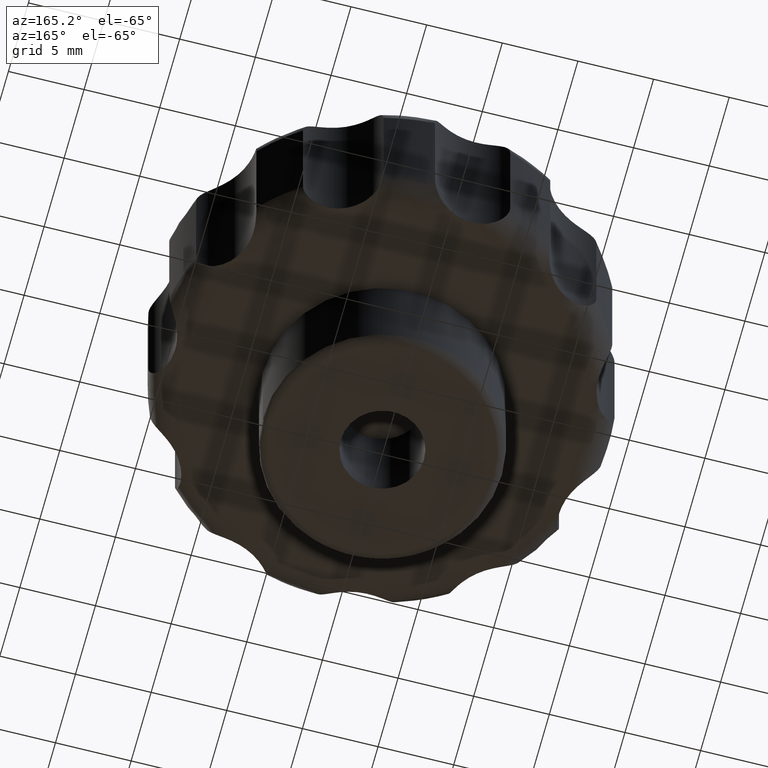
[diagram: clean part render]
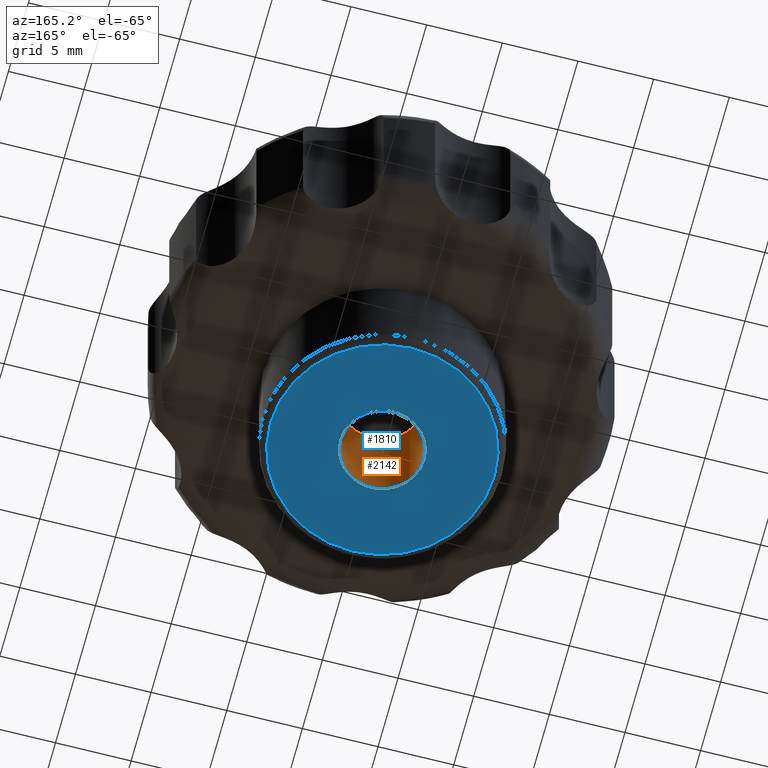
[diagram: same view with the hole feature highlighted: cylindrical wall and planar end face, labeled with their STEP entity ids]
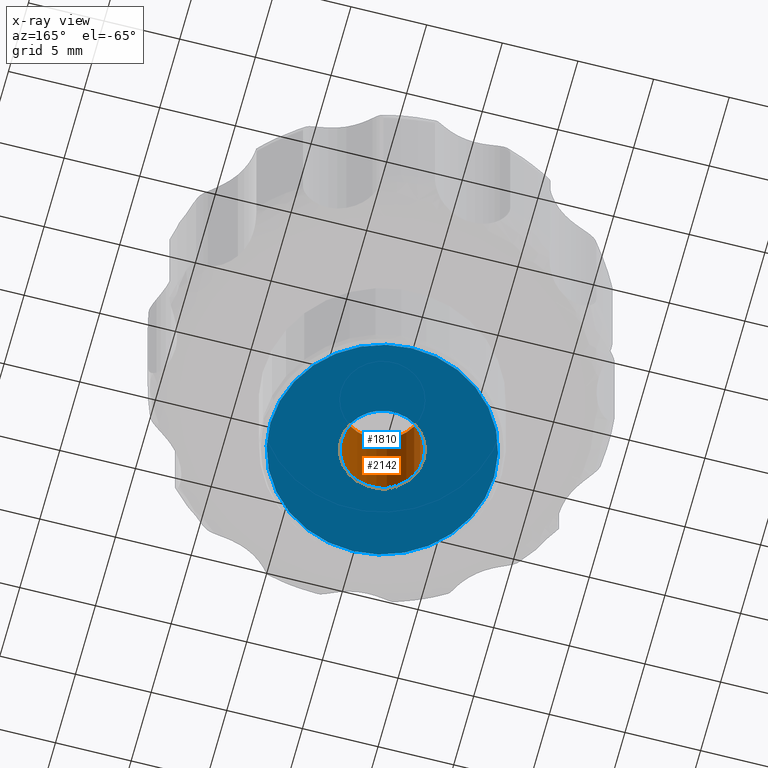
[diagram: x-ray of the same camera — body ghosted, the hole faces saturated]
A machine part, auxiliary view. The highlighted faces form one hole feature of diameter 5.5 mm: the cylindrical wall (entity #2142, orange) and its adjacent planar end face (entity #1810, blue) — they share a circular edge in the B-rep.
The next image is the same camera in x-ray (body ghosted, the hole faces saturated) — the bore reads through the body.
Wall:
#1790=CARTESIAN_POINT('',(-2.750000000000000,0.0,-7.500000000000000));
#1791=VERTEX_POINT('',#1790);
#1792=CARTESIAN_POINT('',(2.750000000000000,0.0,-7.500000000000000));
#1793=VERTEX_POINT('',#1792);
#1794=CARTESIAN_POINT('',(0.0,0.0,-7.500000000000000));
#1795=DIRECTION('',(0.0,0.0,-1.0));
#1796=DIRECTION('',(1.0,0.0,0.0));
#1797=AXIS2_PLACEMENT_3D('',#1794,#1795,#1796);
#1798=CIRCLE('',#1797,2.750000000000000);
#1799=EDGE_CURVE('',#1791,#1793,#1798,.T.);
#1801=CARTESIAN_POINT('',(0.0,0.0,-7.500000000000000));
#1802=DIRECTION('',(0.0,0.0,-1.0));
#1803=DIRECTION('',(1.0,0.0,0.0));
#1804=AXIS2_PLACEMENT_3D('',#1801,#1802,#1803);
#1805=CIRCLE('',#1804,2.750000000000000);
#1806=EDGE_CURVE('',#1793,#1791,#1805,.T.);
#2108=CARTESIAN_POINT('',(0.0,0.0,-7.500000000000000));
#2109=DIRECTION('',(0.0,0.0,-1.0));
#2110=DIRECTION('',(1.0,0.0,0.0));
#2111=AXIS2_PLACEMENT_3D('',#2108,#2109,#2110);
#2112=CYLINDRICAL_SURFACE('',#2111,2.750000000000000);
#2113=CARTESIAN_POINT('',(-2.750000000000000,0.0,0.0));
#2114=VERTEX_POINT('',#2113);
#2115=CARTESIAN_POINT('',(2.750000000000000,0.0,0.0));
#2116=VERTEX_POINT('',#2115);
#2117=CARTESIAN_POINT('',(0.0,0.0,0.0));
#2118=DIRECTION('',(0.0,0.0,-1.0));
#2119=DIRECTION('',(1.0,0.0,0.0));
#2120=AXIS2_PLACEMENT_3D('',#2117,#2118,#2119);
#2121=CIRCLE('',#2120,2.750000000000000);
#2122=EDGE_CURVE('',#2114,#2116,#2121,.T.);
#2123=ORIENTED_EDGE('',*,*,#2122,.F.);
#2124=CARTESIAN_POINT('',(0.0,0.0,0.0));
#2125=DIRECTION('',(0.0,0.0,-1.0));
#2126=DIRECTION('',(1.0,0.0,0.0));
#2127=AXIS2_PLACEMENT_3D('',#2124,#2125,#2126);
#2128=CIRCLE('',#2127,2.750000000000000);
#2129=EDGE_CURVE('',#2116,#2114,#2128,.T.);
#2130=ORIENTED_EDGE('',*,*,#2129,.F.);
#2131=CARTESIAN_POINT('',(2.750000000000000,0.0,-7.500000000000000));
#2132=DIRECTION('',(0.0,0.0,1.0));
#2133=VECTOR('',#2132,7.500000000000000);
#2134=LINE('',#2131,#2133);
#2135=EDGE_CURVE('',#1793,#2116,#2134,.T.);
#2136=ORIENTED_EDGE('',*,*,#2135,.F.);
#2137=ORIENTED_EDGE('',*,*,#1806,.T.);
#2138=ORIENTED_EDGE('',*,*,#1799,.T.);
#2139=ORIENTED_EDGE('',*,*,#2135,.T.);
#2140=EDGE_LOOP('',(#2123,#2130,#2136,#2137,#2138,#2139));
#2141=FACE_OUTER_BOUND('',#2140,.T.);
#2142=ADVANCED_FACE('',(#2141),#2112,.F.);
End face:
#1765=CARTESIAN_POINT('',(-9.480000586842607,9.480000586842611,-7.500000000000000));
#1766=DIRECTION('',(0.0,0.0,-1.0));
#1767=DIRECTION('',(1.0,0.0,0.0));
#1768=AXIS2_PLACEMENT_3D('',#1765,#1766,#1767);
#1769=PLANE('',#1768);
#1770=CARTESIAN_POINT('',(7.399999999999999,0.0,-7.500000000000000));
#1771=VERTEX_POINT('',#1770);
#1772=CARTESIAN_POINT('',(-7.400000000000000,0.0,-7.500000000000000));
#1773=VERTEX_POINT('',#1772);
#1774=CARTESIAN_POINT('',(0.0,0.0,-7.500000000000000));
#1775=DIRECTION('',(0.0,0.0,-1.0));
#1776=DIRECTION('',(1.0,0.0,0.0));
#1777=AXIS2_PLACEMENT_3D('',#1774,#1775,#1776);
#1778=CIRCLE('',#1777,7.400000000000000);
#1779=EDGE_CURVE('',#1771,#1773,#1778,.T.);
#1780=ORIENTED_EDGE('',*,*,#1779,.T.);
#1781=CARTESIAN_POINT('',(0.0,0.0,-7.500000000000000));
#1782=DIRECTION('',(0.0,0.0,-1.0));
#1783=DIRECTION('',(1.0,0.0,0.0));
#1784=AXIS2_PLACEMENT_3D('',#1781,#1782,#1783);
#1785=CIRCLE('',#1784,7.400000000000000);
#1786=EDGE_CURVE('',#1773,#1771,#1785,.T.);
#1787=ORIENTED_EDGE('',*,*,#1786,.T.);
#1788=EDGE_LOOP('',(#1780,#1787));
#1789=FACE_OUTER_BOUND('',#1788,.T.);
#1790=CARTESIAN_POINT('',(-2.750000000000000,0.0,-7.500000000000000));
#1791=VERTEX_POINT('',#1790);
#1792=CARTESIAN_POINT('',(2.750000000000000,0.0,-7.500000000000000));
#1793=VERTEX_POINT('',#1792);
#1794=CARTESIAN_POINT('',(0.0,0.0,-7.500000000000000));
#1795=DIRECTION('',(0.0,0.0,-1.0));
#1796=DIRECTION('',(1.0,0.0,0.0));
#1797=AXIS2_PLACEMENT_3D('',#1794,#1795,#1796);
#1798=CIRCLE('',#1797,2.750000000000000);
#1799=EDGE_CURVE('',#1791,#1793,#1798,.T.);
#1800=ORIENTED_EDGE('',*,*,#1799,.F.);
#1801=CARTESIAN_POINT('',(0.0,0.0,-7.500000000000000));
#1802=DIRECTION('',(0.0,0.0,-1.0));
#1803=DIRECTION('',(1.0,0.0,0.0));
#1804=AXIS2_PLACEMENT_3D('',#1801,#1802,#1803);
#1805=CIRCLE('',#1804,2.750000000000000);
#1806=EDGE_CURVE('',#1793,#1791,#1805,.T.);
#1807=ORIENTED_EDGE('',*,*,#1806,.F.);
#1808=EDGE_LOOP('',(#1800,#1807));
#1809=FACE_BOUND('',#1808,.T.);
#1810=ADVANCED_FACE('',(#1789,#1809),#1769,.T.);